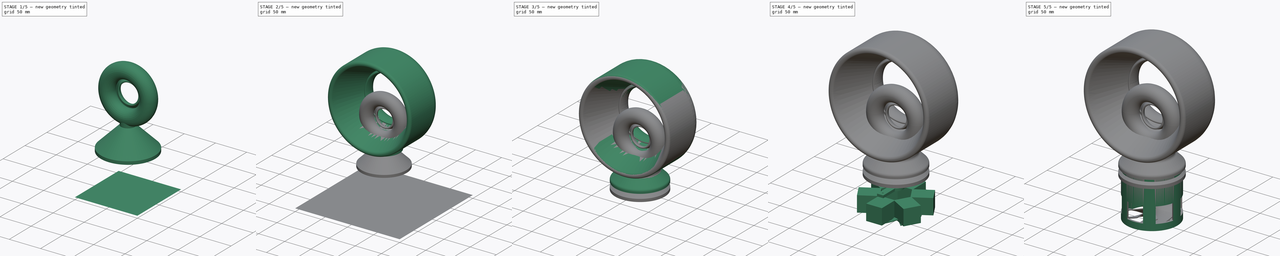
[diagram: build sequence overview — one tinted view per stage of 5, left to right]
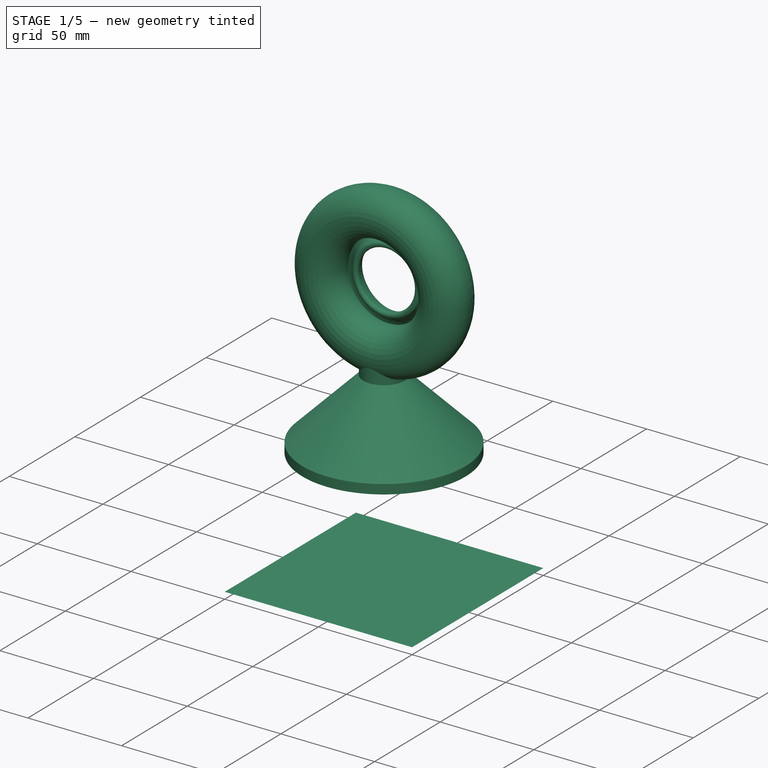
[diagram: stage 1 of 5 — iso view after this stage's code; geometry added in this stage tinted green]
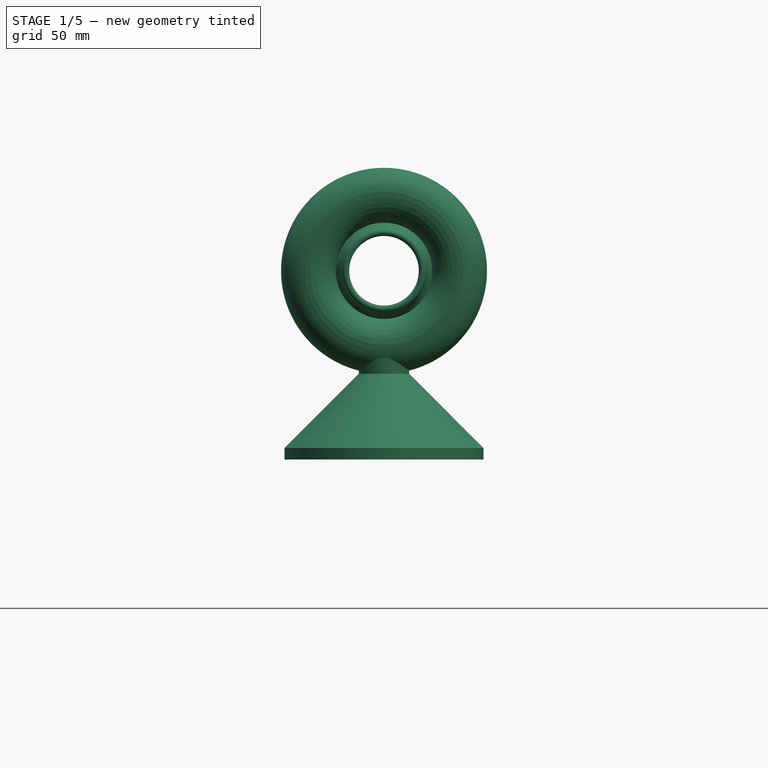
[diagram: stage 1 of 5 — front view after this stage's code; geometry added in this stage tinted green]
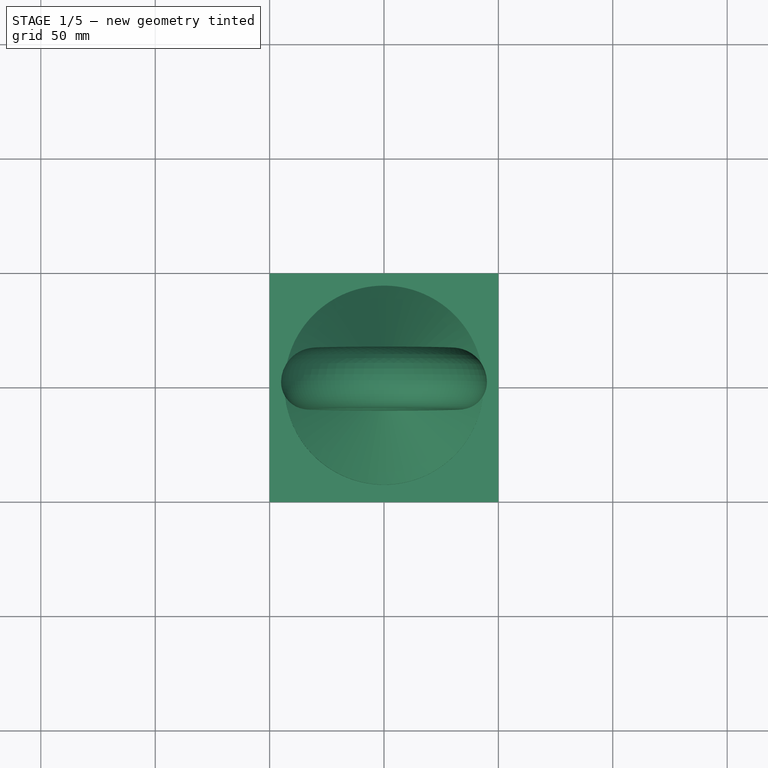
[diagram: stage 1 of 5 — top view after this stage's code; geometry added in this stage tinted green]
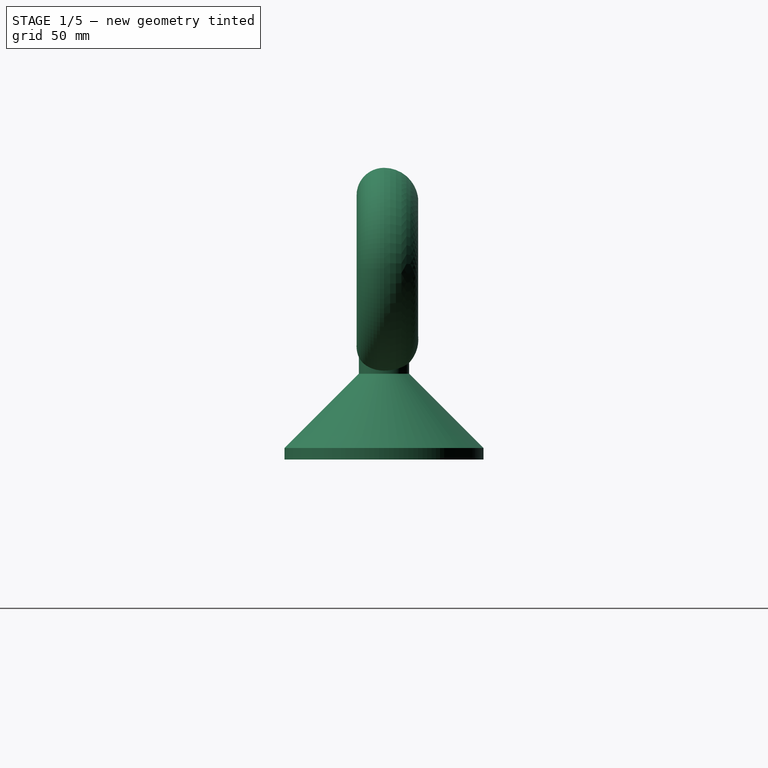
[diagram: stage 1 of 5 — right view after this stage's code; geometry added in this stage tinted green]
FCSTD DOCUMENT  (FreeCAD 0.19R24366 (Git))
Label: Airfan
License: All rights reserved
LicenseURL: http://en.wikipedia.org/wiki/All_rights_reserved
objects: Sketcher::SketchObject×17, PartDesign::Body×10, PartDesign::Pad×9, Part::FeaturePython×7, PartDesign::PolarPattern×4, PartDesign::Revolution×4, PartDesign::Pocket×3, PartDesign::Fillet×3, Part::MultiFuse×2, App::DocumentObjectGroup×2, PartDesign::AdditiveHelix×1, PartDesign::FeatureBase×1, Part::Cylinder×1, Part::Cut×1, PartDesign::Boolean×1
note: 84 computed .brp shape members not serialized (recipe doc carries the construction recipe); baked Part::Feature solids carry a one-line shape summary decoded from their .brp

FEATURE [App::DocumentObjectGroup] GrExplode_Slice  label="Exploded Slice"
  Group = -> [Slice_child0,Slice_child3]
FEATURE [Sketcher::SketchObject] Sketch015
  AttachmentOffset = pos=(-30,0,0) rot=(0,0,1;0rad)
  FullyConstrained = true
  MapMode = 5
  Placement = pos=(-6.7e-15,-30,6.7e-15) rot=(0.57735,0.57735,0.57735;2.0944rad)
  Support = -> [YZ_Plane007]
  sketch-geometry (8):
    g0: ArcOfCircle CenterX=0 CenterY=0 CenterZ=0 NormalX=0 NormalY=0 NormalZ=1 AngleXU=0 Radius=15 StartAngle=3.14159 EndAngle=6.10865
    g1: ArcOfCircle CenterX=0 CenterY=0 CenterZ=0 NormalX=0 NormalY=0 NormalZ=1 AngleXU=0 Radius=12 StartAngle=3.14159 EndAngle=6.10865
    g2: LineSegment StartX=0 StartY=0 StartZ=0 EndX=14.7721 EndY=-2.60472 EndZ=0
    g3: ArcOfCircle CenterX=-3 CenterY=0 CenterZ=0 NormalX=0 NormalY=0 NormalZ=1 AngleXU=0 Radius=12 StartAngle=6.01973 EndAngle=9.42478
    g4: ArcOfCircle CenterX=-3 CenterY=0 CenterZ=0 NormalX=0 NormalY=0 NormalZ=1 AngleXU=0 Radius=9 StartAngle=6.04837 EndAngle=9.42478
    g5: ArcOfCircle CenterX=7.16949 CenterY=-2.60948 CenterZ=0 NormalX=0 NormalY=0 NormalZ=1 AngleXU=0 Radius=1.50737 StartAngle=2.79253 EndAngle=5.93412
    g6: ArcOfCircle CenterX=13.2949 CenterY=-2.34425 CenterZ=0 NormalX=0 NormalY=0 NormalZ=1 AngleXU=0 Radius=1.5 StartAngle=6.10865 EndAngle=9.25025
    g7: LineSegment StartX=0 StartY=0 StartZ=0 EndX=8.58595 EndY=-3.12503 EndZ=0
  constraints (25):
    c: Coincident(g0,g-1)
    c: PointOnObject(g0,g-1)
    c: Coincident(g1,g0)
    c: PointOnObject(g1,g-1)
    c: Coincident(g2,g0)
    c: Coincident(g2,g0)
    c: PointOnObject(g1,g2)
    c: Radius(g0) = 15
    c: Radius(g1) = 12
    c: Angle(g-1,g2) = -0.174533
    c: PointOnObject(g3,g-1)
    c: Coincident(g3,g0)
    c: Radius(g3) = 12
    c: Coincident(g4,g3)
    c: Coincident(g4,g1)
    c: Coincident(g5,g3)
    c: Coincident(g5,g4)
    c: PointOnObject(g6,g2)
    c: Coincident(g6,g0)
    c: Coincident(g6,g1)
    c: Coincident(g7,g0)
    c: Coincident(g7,g3)
    c: PointOnObject(g4,g7)
    c: PointOnObject(g5,g7)
    c: Angle(g7,g2) = 0.174533
FEATURE [PartDesign::Revolution] Revolution003
  Angle = 360
  Axis = (-3e-16,3e-16,1)
  Base = (0,0,0)
  Placement = pos=(0,0,0) rot=(0.57735,0.57735,0.57735;2.0944rad)
  Profile = -> Sketch015
  ReferenceAxis = -> Z_Axis007
FEATURE [PartDesign::Body] Body007
  Group = -> [Sketch015,Revolution003]
  Origin = -> Origin007
  Tip = -> Revolution003
FEATURE [Sketcher::SketchObject] Sketch016
  FullyConstrained = true
  MapMode = 5
  Placement = pos=(0,0,0) rot=(1,0,0;1.5708rad)
  Support = -> [XZ_Plane008]
  sketch-geometry (2):
    g0: Circle CenterX=0 CenterY=0 CenterZ=0 NormalX=0 NormalY=0 NormalZ=1 AngleXU=0 Radius=11
    g1: Circle CenterX=0 CenterY=0 CenterZ=0 NormalX=0 NormalY=0 NormalZ=1 AngleXU=0 Radius=8
  constraints (5):
    c: Coincident(g0,g-1)
    c: PointOnObject(g1,g-2)
    c: Radius(g0) = 11
    c: Radius(g1) = 8
    c: PointOnObject(g1,g-1)
FEATURE [PartDesign::Pad] Pad007
  Direction = (1,1,1)
  Length = 7
  Length2 = 100
  Placement = pos=(0,0,0) rot=(1,0,0;1.5708rad)
  Profile = -> Sketch016
  Type = 0
FEATURE [Part::Cylinder] Cylinder
  Angle = 360
  AttacherType = Attacher::AttachEngine3D
  Height = 8
  Placement = pos=(0,-37,8.7e-15) rot=(1,0,0;1.5708rad)
  Radius = 8
FEATURE [Sketcher::SketchObject] Sketch017
  ExternalGeometry = -> [Pad007]
  FullyConstrained = true
  MapMode = 5
  Support = -> [XY_Plane008]
  sketch-geometry (6):
    g0: LineSegment StartX=-8 StartY=-7 StartZ=0 EndX=-11 EndY=-7 EndZ=0
    g1: LineSegment StartX=-11 StartY=-7 StartZ=0 EndX=-43.5 EndY=-39.5 EndZ=0
    g2: LineSegment StartX=-43.5 StartY=-39.5 StartZ=0 EndX=-43.5 EndY=-44.5 EndZ=0
    g3: LineSegment StartX=-43.5 StartY=-44.5 StartZ=0 EndX=-40.5 EndY=-44.5 EndZ=0
    g4: LineSegment StartX=-40.5 StartY=-44.5 StartZ=0 EndX=-40.5 EndY=-39.5 EndZ=0
    g5: LineSegment StartX=-40.5 StartY=-39.5 StartZ=0 EndX=-8 EndY=-7 EndZ=0
  constraints (16):
    c: Coincident(g0,g-4)
    c: Coincident(g0,g-3)
    c: Coincident(g1,g0)
    c: Coincident(g2,g1)
    c: Vertical(g4)
    c: Coincident(g5,g0)
    c: Vertical(g2)
    c: Coincident(g3,g2)
    c: Coincident(g4,g3)
    c: Coincident(g4,g5)
    c: DistanceX(g3,g3) = 3
    c: DistanceY(g4,g4) = 5
    c: DistanceY(g2,g2) = 5
    c: Horizontal(g3)
    c: Distance(g3,g-2) = 40.5
    c: Angle(g4,g5) = 2.35619
FEATURE [PartDesign::Revolution] Revolution004
  Angle = 360
  Axis = (0,1,0)
  Base = (0,0,0)
  BaseFeature = -> Pad007
  Placement = pos=(0,0,0) rot=(1,0,0;1.5708rad)
  Profile = -> Sketch017
  ReferenceAxis = -> Sketch017 [V_Axis]
FEATURE [PartDesign::Body] Body008
  Group = -> [Sketch016,Pad007,Sketch017,Revolution004]
  Origin = -> Origin008
  Placement = pos=(0,-38,0) rot=(0,0,1;0rad)
  Tip = -> Revolution004
FEATURE [Part::MultiFuse] Fusion001
  Shapes = -> [Body007,Body008]
FEATURE [Part::Cut] Cut  label="FanRing001"
  Base = -> Fusion001
  Placement = pos=(0,0,144) rot=(1,0,0;1.5708rad)
  Tool = -> Cylinder
FEATURE [PartDesign::Body] Body  label="Airshaft"
  Group = -> [Sketch,Pad,Sketch001,Pad001,PolarPattern,Sketch002,Pad002,PolarPattern001,Fillet,Boolean]
  Origin = -> Origin
  Tip = -> Boolean
FEATURE [Sketcher::SketchObject] Sketch018
  FullyConstrained = true
  MapMode = 5
  Support = -> [XY_Plane009]
  sketch-geometry (4):
    g0: LineSegment StartX=-50 StartY=50 StartZ=0 EndX=50 EndY=50 EndZ=0
    g1: LineSegment StartX=50 StartY=50 StartZ=0 EndX=50 EndY=-50 EndZ=0
    g2: LineSegment StartX=50 StartY=-50 StartZ=0 EndX=-50 EndY=-50 EndZ=0
    g3: LineSegment StartX=-50 StartY=-50 StartZ=0 EndX=-50 EndY=50 EndZ=0
  constraints (11):
    c: Coincident(g0,g1)
    c: Coincident(g1,g2)
    c: Coincident(g2,g3)
    c: Coincident(g3,g0)
    c: Horizontal(g0)
    c: Horizontal(g2)
    c: Vertical(g1)
    c: Vertical(g3)
    c: DistanceY(g1,g1) = 100
    c: DistanceX(g0,g0) = 100
    c: Symmetric(g2,g0,g-1)
FEATURE [PartDesign::Pad] Pad008
  Direction = (1,1,1)
  Length = 1e-06
  Length2 = 100
  Profile = -> Sketch018
  Type = 0
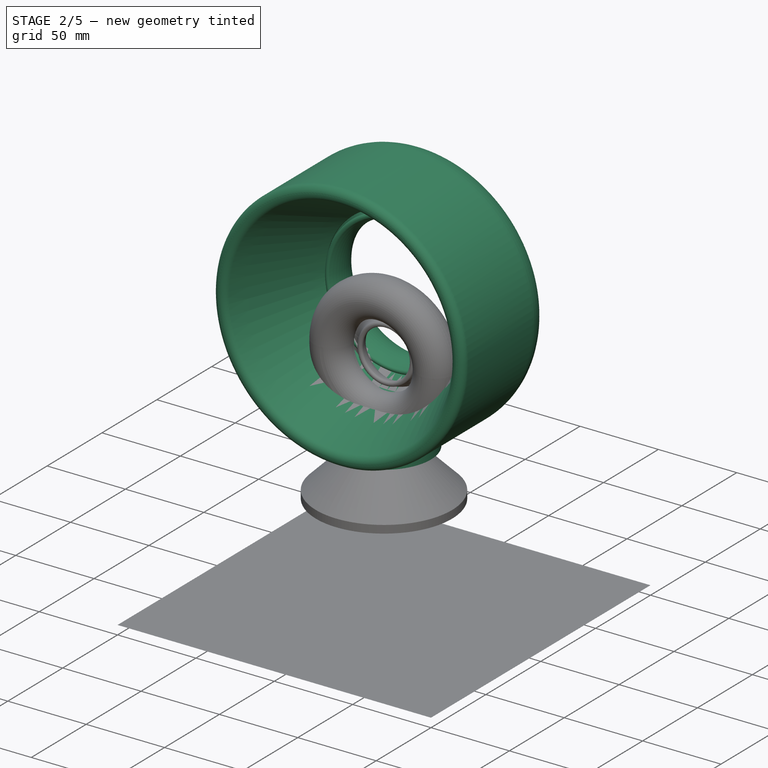
[diagram: stage 2 of 5 — iso view after this stage's code; geometry added in this stage tinted green]
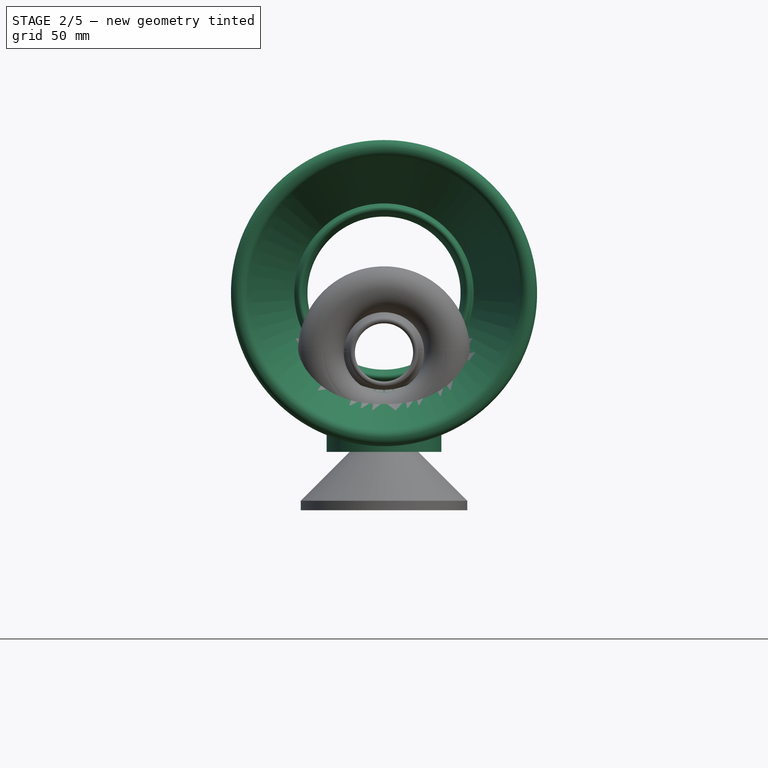
[diagram: stage 2 of 5 — front view after this stage's code; geometry added in this stage tinted green]
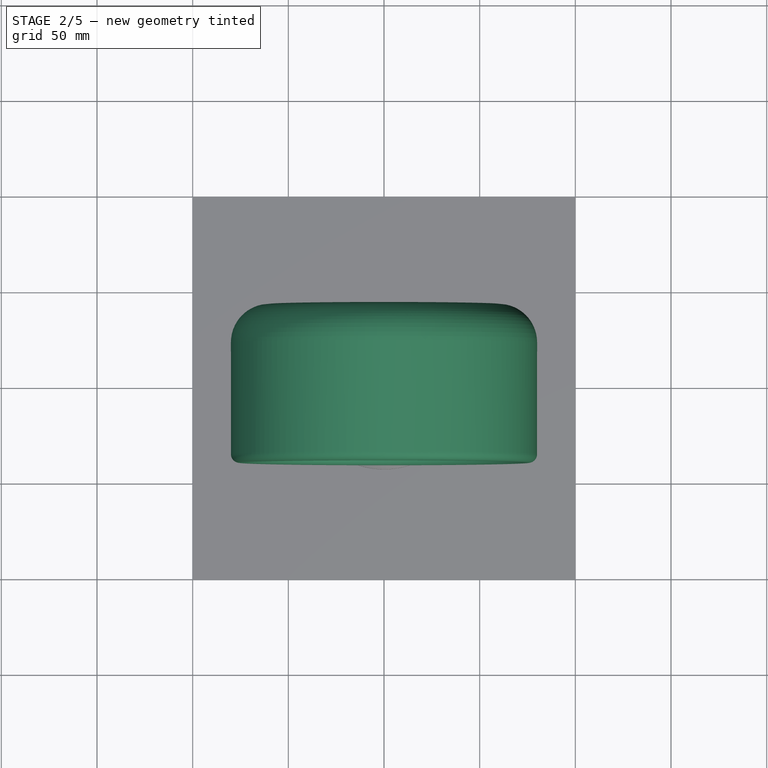
[diagram: stage 2 of 5 — top view after this stage's code; geometry added in this stage tinted green]
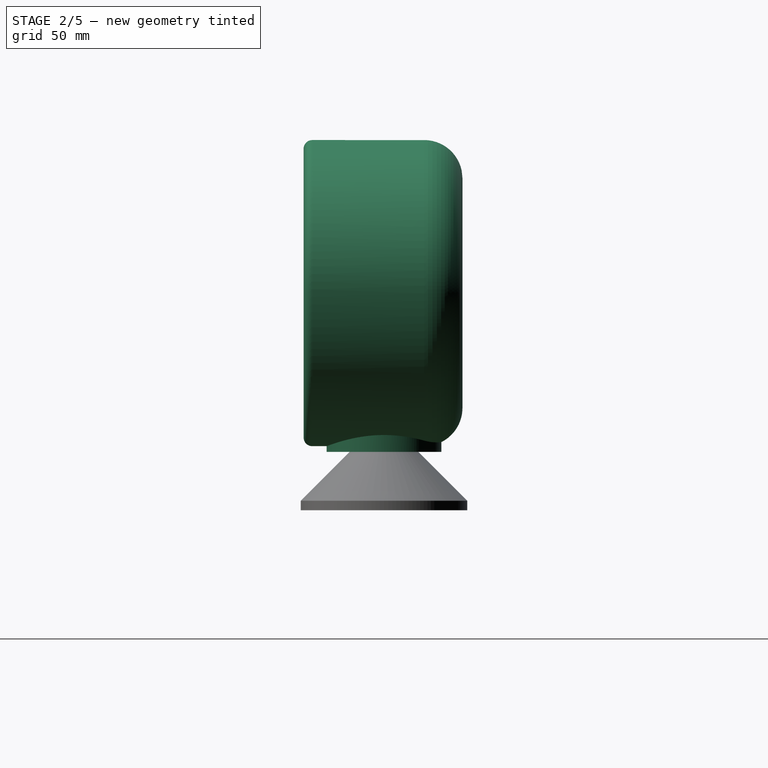
[diagram: stage 2 of 5 — right view after this stage's code; geometry added in this stage tinted green]
FEATURE [PartDesign::Body] Body003  label="Impeller"
  Group = -> [Sketch005,Pad005,Sketch007,AdditiveHelix,PolarPattern003,Sketch008,Pocket001]
  Origin = -> Origin003
  Placement = pos=(0,0,48) rot=(0,0,1;0rad)
  Tip = -> Pocket001
FEATURE [Sketcher::SketchObject] Sketch009
  AttachmentOffset = pos=(-60,0,0) rot=(0,0,1;0rad)
  FullyConstrained = true
  MapMode = 5
  Placement = pos=(-1.33e-14,-60,1.33e-14) rot=(0.57735,0.57735,0.57735;2.0944rad)
  Support = -> [YZ_Plane004]
  sketch-geometry (12):
    g0: ArcOfCircle CenterX=0 CenterY=0 CenterZ=0 NormalX=0 NormalY=0 NormalZ=1 AngleXU=0 Radius=20 StartAngle=3.14159 EndAngle=6.80678
    g1: ArcOfCircle CenterX=0 CenterY=0 CenterZ=0 NormalX=0 NormalY=0 NormalZ=1 AngleXU=0 Radius=17 StartAngle=3.14159 EndAngle=6.80678
    g2: LineSegment StartX=0 StartY=0 StartZ=0 EndX=17.3205 EndY=10 EndZ=0
    g3: ArcOfCircle CenterX=16.0215 CenterY=9.25 CenterZ=0 NormalX=0 NormalY=0 NormalZ=1 AngleXU=0 Radius=1.5 StartAngle=0.523599 EndAngle=3.66519
    g4: LineSegment StartX=-20 StartY=2.4e-15 StartZ=0 EndX=-20 EndY=58.5 EndZ=0
    g5: LineSegment StartX=-17 StartY=2.1e-15 StartZ=0 EndX=-17 EndY=60.7768 EndZ=0
    g6: LineSegment StartX=-11.4141 StartY=60.3855 StartZ=0 EndX=12.9904 EndY=7.5 EndZ=0
    g7: LineSegment StartX=10.2664 StartY=6.243 StartZ=0 EndX=-15.092 EndY=61.1958 EndZ=0
    g8: ArcOfCircle CenterX=11.6284 CenterY=6.87149 CenterZ=0 NormalX=0 NormalY=0 NormalZ=1 AngleXU=0 Radius=1.5 StartAngle=3.57393 EndAngle=6.71554
    g9: LineSegment StartX=12.9904 StartY=7.5 StartZ=0 EndX=10.2664 EndY=6.243 EndZ=0
    g10: ArcOfCircle CenterX=-16 CenterY=60.7768 CenterZ=0 NormalX=0 NormalY=0 NormalZ=1 AngleXU=0 Radius=1 StartAngle=0.432342 EndAngle=3.14159
    g11: ArcOfCircle CenterX=-15.5 CenterY=58.5 CenterZ=0 NormalX=0 NormalY=0 NormalZ=1 AngleXU=0 Radius=4.5 StartAngle=0.432342 EndAngle=3.14159
  constraints (34):
    c: Coincident(g0,g-1)
    c: PointOnObject(g0,g-1)
    c: Coincident(g1,g0)
    c: PointOnObject(g1,g-1)
    c: Radius(g1) = 17
    c: Radius(g0) = 20
    c: Coincident(g2,g0)
    c: Coincident(g2,g0)
    c: Angle(g-1,g2) = 0.523599
    c: PointOnObject(g1,g2)
    c: PointOnObject(g3,g2)
    c: Coincident(g3,g0)
    c: Coincident(g3,g1)
    c: Coincident(g4,g0)
    c: Vertical(g4)
    c: Coincident(g5,g1)
    c: Vertical(g5)
    c: PointOnObject(g6,g2)
    c: Coincident(g8,g6)
    c: Coincident(g8,g7)
    c: Tangent(g7,g8)
    c: Tangent(g6,g8)
    c: Parallel(g7,g6)
    c: Coincident(g9,g6)
    c: Coincident(g9,g7)
    c: Distance(g9) = 3
    c: Distance(g6,g1) = 2
    c: Tangent(g5,g10) = 1.5708
    c: Tangent(g7,g10) = -1.5708
    c: Tangent(g4,g11) = 1.5708
    c: Tangent(g6,g11) = 1.5708
    c: Radius(g11) = 4.5
    c: Radius(g10) = 1
    c: DistanceY(g0,g4) = 58.5
FEATURE [PartDesign::Revolution] Revolution
  Angle = 360
  Axis = (-3e-16,3e-16,1)
  Base = (0,0,0)
  Placement = pos=(0,0,0) rot=(0.57735,0.57735,0.57735;2.0944rad)
  Profile = -> Sketch009
  ReferenceAxis = -> Z_Axis004
FEATURE [PartDesign::Body] Body004  label="FanRing"
  Group = -> [Sketch009,Revolution]
  Origin = -> Origin004
  Placement = pos=(0,21,175) rot=(1,0,0;1.5708rad)
  Tip = -> Revolution
FEATURE [Part::FeaturePython] Tube  # WARN: FeaturePython — macro-defined, semantics opaque (R4)
  AttacherType = Attacher::AttachEngine3D
  Height = 10
  InnerRadius = 27
  OuterRadius = 30
  Placement = pos=(0,0,92) rot=(0,0,1;0rad)
FEATURE [Part::MultiFuse] Fusion
  Shapes = -> [Body004,Tube]
FEATURE [PartDesign::FeatureBase] BaseFeature
  BaseFeature = -> Fusion
FEATURE [PartDesign::Body] Body005  label="FanHead"
  BaseFeature = -> Fusion
  Group = -> [BaseFeature,Sketch010,Pocket002,Sketch013,Revolution002,Fillet001,Fillet002]
  Origin = -> Origin005
  Placement = pos=(0,0,1) rot=(0,0,1;0rad)
  Tip = -> Fillet002
FEATURE [Sketcher::SketchObject] Sketch014
  FullyConstrained = true
  MapMode = 5
  Support = -> [XY_Plane006]
  sketch-geometry (4):
    g0: LineSegment StartX=-100 StartY=100 StartZ=0 EndX=100 EndY=100 EndZ=0
    g1: LineSegment StartX=100 StartY=100 StartZ=0 EndX=100 EndY=-100 EndZ=0
    g2: LineSegment StartX=100 StartY=-100 StartZ=0 EndX=-100 EndY=-100 EndZ=0
    g3: LineSegment StartX=-100 StartY=-100 StartZ=0 EndX=-100 EndY=100 EndZ=0
  constraints (11):
    c: Coincident(g0,g1)
    c: Coincident(g1,g2)
    c: Coincident(g2,g3)
    c: Coincident(g3,g0)
    c: Horizontal(g0)
    c: Horizontal(g2)
    c: Vertical(g1)
    c: Vertical(g3)
    c: DistanceX(g2,g2) = 200
    c: DistanceY(g1,g1) = 200
    c: Symmetric(g0,g1,g-1)
FEATURE [PartDesign::Pad] Pad006
  Direction = (1,1,1)
  Length = 0.0001
  Length2 = 100
  Profile = -> Sketch014
  Type = 0
FEATURE [PartDesign::Body] Body009
  Group = -> [Sketch018,Pad008]
  Origin = -> Origin009
  Placement = pos=(0,0,145) rot=(0,0,1;0rad)
  Tip = -> Pad008
FEATURE [Part::FeaturePython] Slice001  # WARN: FeaturePython — macro-defined, semantics opaque (R4)
  Base = -> Cut
  Mode = 1
  Tolerance = 0
  Tools = -> [Body009]
FEATURE [Part::FeaturePython] Slice001_child0  label="Slice001.0"  # WARN: FeaturePython — macro-defined, semantics opaque (R4)
  Base = -> Slice001
  FilterType = 1
  Invert = false
  OverrideMaxVal = 0
  WindowFrom = 80
  WindowTo = 100
  items = 0
FEATURE [Part::FeaturePython] Slice001_child1  label="Slice001.1"  # WARN: FeaturePython — macro-defined, semantics opaque (R4)
  Base = -> Slice001
  FilterType = 1
  Invert = false
  OverrideMaxVal = 0
  WindowFrom = 80
  WindowTo = 100
  items = 1
FEATURE [App::DocumentObjectGroup] GrExplode_Slice001  label="Exploded Slice001"
  Group = -> [Slice001_child0,Slice001_child1]
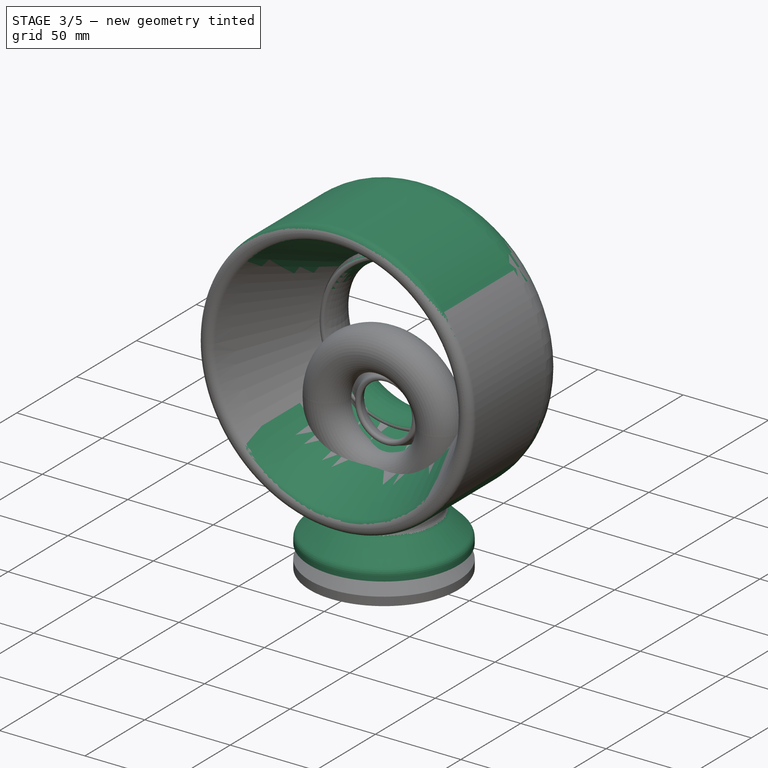
[diagram: stage 3 of 5 — iso view after this stage's code; geometry added in this stage tinted green]
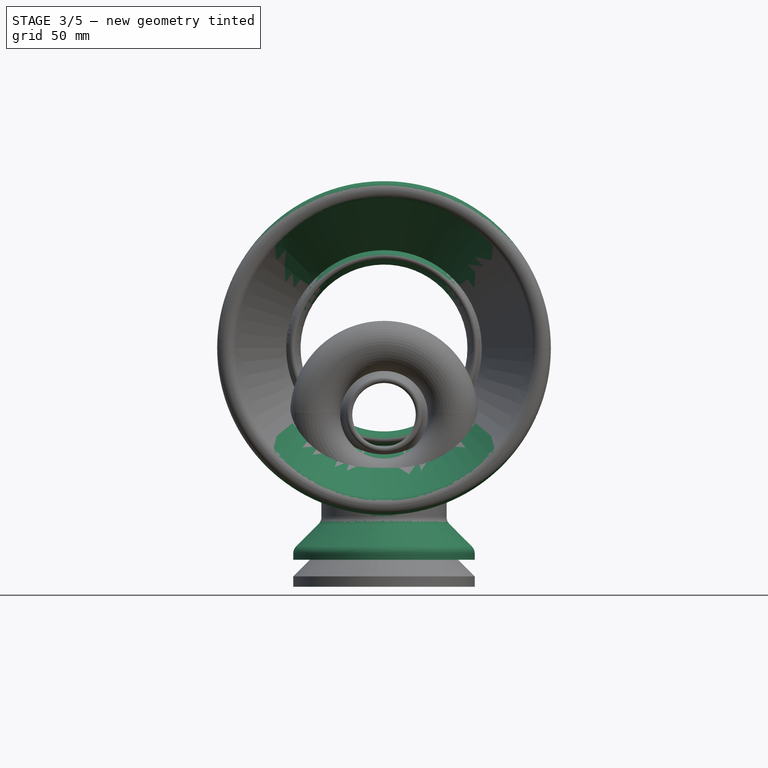
[diagram: stage 3 of 5 — front view after this stage's code; geometry added in this stage tinted green]
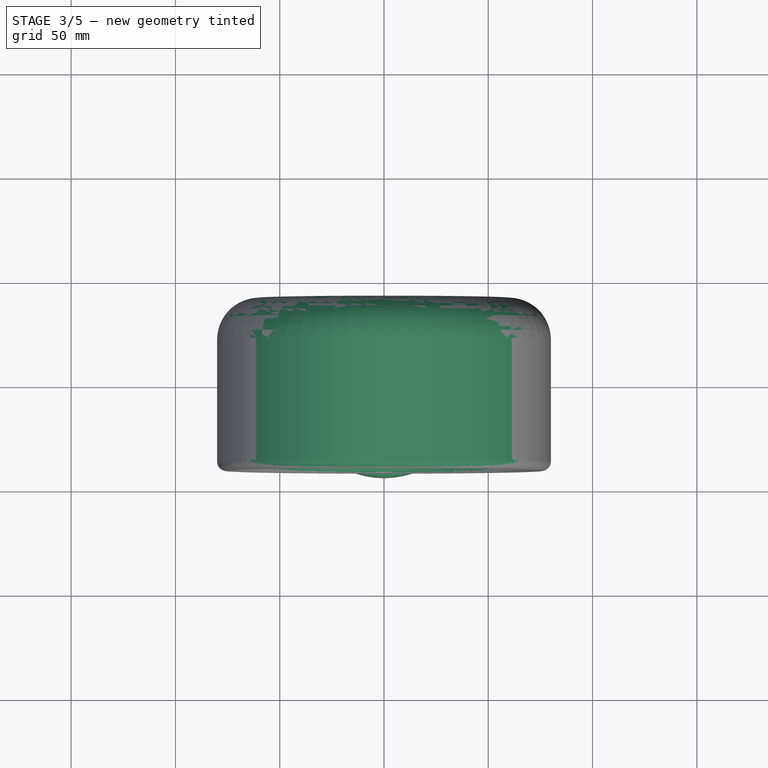
[diagram: stage 3 of 5 — top view after this stage's code; geometry added in this stage tinted green]
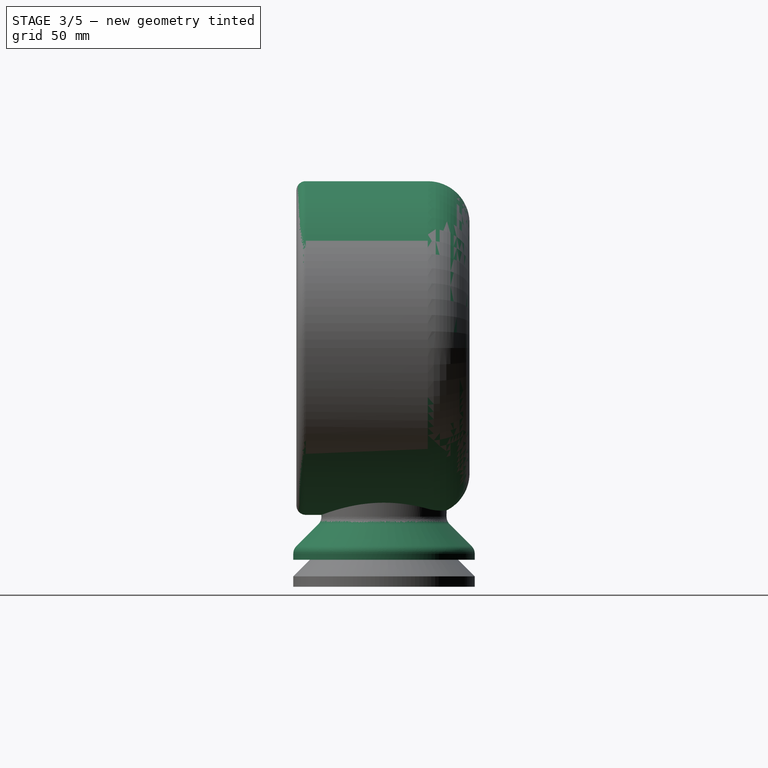
[diagram: stage 3 of 5 — right view after this stage's code; geometry added in this stage tinted green]
FEATURE [Sketcher::SketchObject] Sketch010
  FullyConstrained = true
  MapMode = 5
  Placement = pos=(0,0,92) rot=(1,0,0;3.14159rad)
  Support = -> [BaseFeature]
  sketch-geometry (1):
    g0: Circle CenterX=0 CenterY=0 CenterZ=0 NormalX=0 NormalY=0 NormalZ=1 AngleXU=0 Radius=27
  constraints (2):
    c: Coincident(g0,g-1)
    c: Radius(g0) = 27
FEATURE [PartDesign::Pocket] Pocket002
  BaseFeature = -> BaseFeature
  Length = 11
  Length2 = 100
  Profile = -> Sketch010
  Type = 0
FEATURE [Sketcher::SketchObject] Sketch013
  ExternalGeometry = -> [Pocket002]
  FullyConstrained = true
  MapMode = 5
  Placement = pos=(0,0,0) rot=(1,0,0;1.5708rad)
  Support = -> [XZ_Plane005]
  sketch-geometry (6):
    g0: LineSegment StartX=-30 StartY=92 StartZ=0 EndX=-43.5 EndY=78.5 EndZ=0
    g1: LineSegment StartX=-27 StartY=92 StartZ=0 EndX=-40.5 EndY=78.5 EndZ=0
    g2: LineSegment StartX=-40.5 StartY=78.5 StartZ=0 EndX=-40.5 EndY=73.5 EndZ=0
    g3: LineSegment StartX=-40.5 StartY=73.5 StartZ=0 EndX=-43.5 EndY=73.5 EndZ=0
    g4: LineSegment StartX=-43.5 StartY=73.5 StartZ=0 EndX=-43.5 EndY=78.5 EndZ=0
    g5: LineSegment StartX=-30 StartY=92 StartZ=0 EndX=-27 EndY=92 EndZ=0
  constraints (17):
    c: Coincident(g0,g-3)
    c: Coincident(g1,g-4)
    c: Coincident(g2,g1)
    c: Vertical(g2)
    c: Horizontal(g3)
    c: Coincident(g4,g3)
    c: Coincident(g4,g0)
    c: Vertical(g4)
    c: DistanceX(g3,g3) = 3
    c: DistanceY(g2,g2) = 5
    c: DistanceY(g4,g4) = 5
    c: Coincident(g3,g2)
    c: Coincident(g5,g0)
    c: Coincident(g5,g1)
    c: DistanceY(g2,g0) = 18.5
    c: Distance(g2,g-2) = 40.5
    c: Angle(g5,g1) = 0.785398
FEATURE [PartDesign::Revolution] Revolution002
  Angle = 360
  Axis = (0,2e-16,1)
  Base = (0,0,0)
  BaseFeature = -> Pocket002
  Profile = -> Sketch013
  ReferenceAxis = -> Sketch013 [V_Axis]
FEATURE [PartDesign::Fillet] Fillet001
  Base = -> Revolution002 [Edge45,Edge53,Edge52]
  BaseFeature = -> Revolution002
  Radius = 5
  SupportTransform = false
FEATURE [PartDesign::Fillet] Fillet002
  Base = -> Fillet001 [Edge18,Edge17]
  BaseFeature = -> Fillet001
  Radius = 4
  SupportTransform = false
FEATURE [PartDesign::Body] Body006
  Group = -> [Sketch014,Pad006]
  Origin = -> Origin006
  Placement = pos=(0,0,176) rot=(0,0,1;0rad)
  Tip = -> Pad006
FEATURE [Part::FeaturePython] Slice  # WARN: FeaturePython — macro-defined, semantics opaque (R4)
  Base = -> Body005
  Mode = 1
  Tolerance = 0
  Tools = -> [Body006]
FEATURE [Part::FeaturePython] Slice_child0  label="FanHeadBottom"  # WARN: FeaturePython — macro-defined, semantics opaque (R4)
  Base = -> Slice
  FilterType = 1
  Invert = false
  OverrideMaxVal = 0
  WindowFrom = 80
  WindowTo = 100
  items = 0
FEATURE [Part::FeaturePython] Slice_child3  label="FanHeapTop"  # WARN: FeaturePython — macro-defined, semantics opaque (R4)
  Base = -> Slice
  FilterType = 1
  Invert = false
  OverrideMaxVal = 0
  WindowFrom = 80
  WindowTo = 100
  items = 3
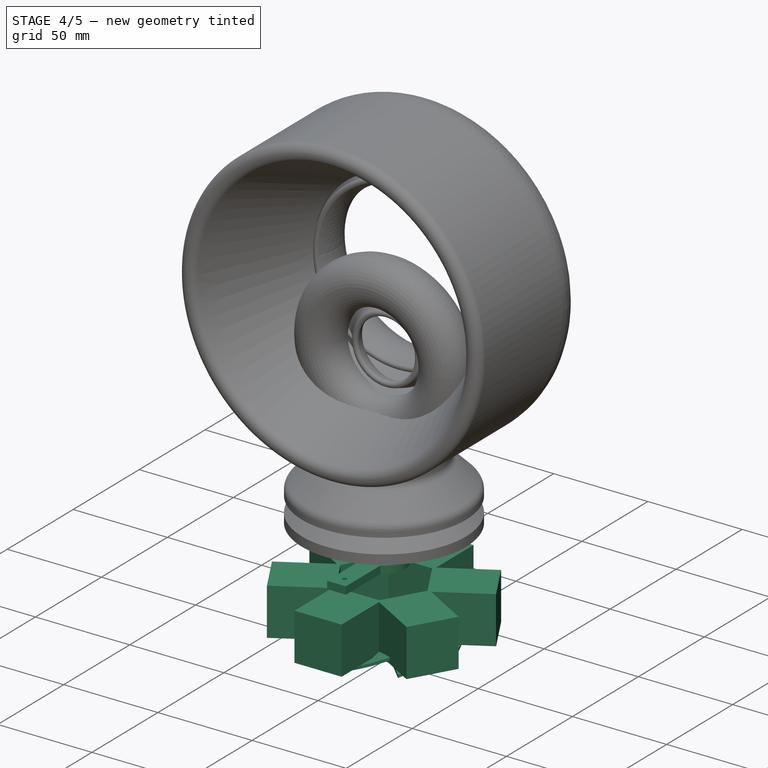
[diagram: stage 4 of 5 — iso view after this stage's code; geometry added in this stage tinted green]
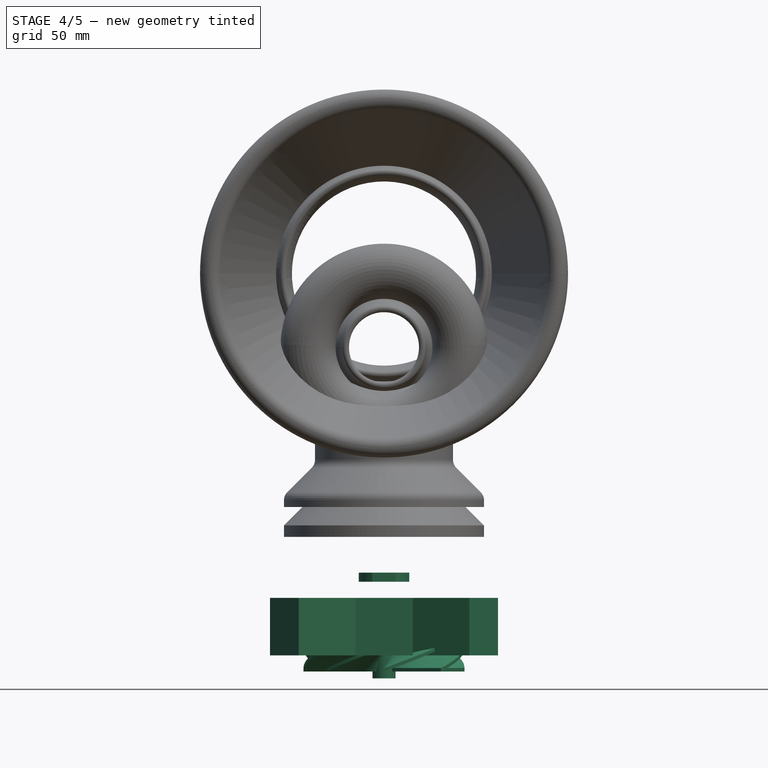
[diagram: stage 4 of 5 — front view after this stage's code; geometry added in this stage tinted green]
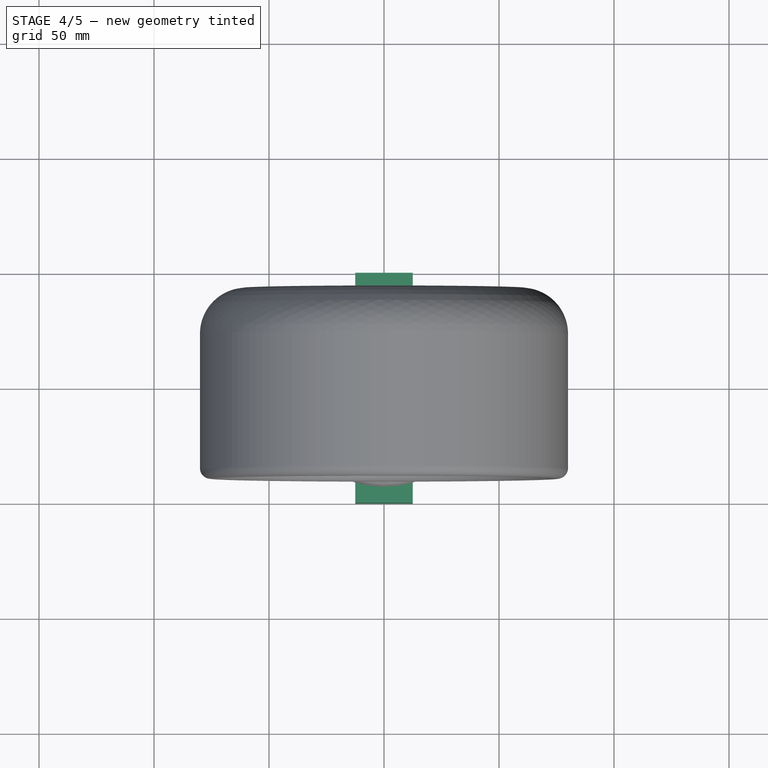
[diagram: stage 4 of 5 — top view after this stage's code; geometry added in this stage tinted green]
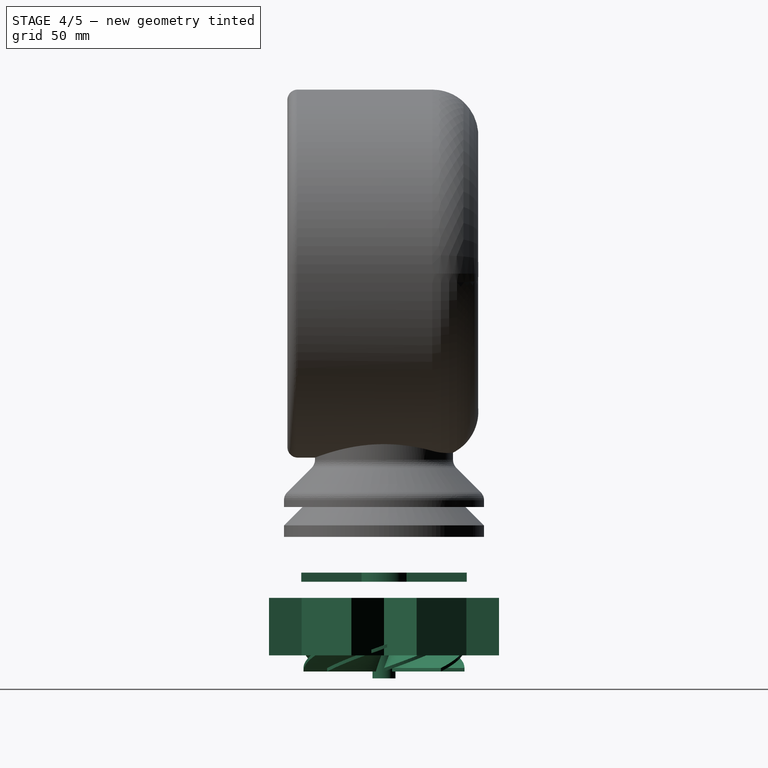
[diagram: stage 4 of 5 — right view after this stage's code; geometry added in this stage tinted green]
FEATURE [Sketcher::SketchObject] Sketch003
  AttachmentOffset = pos=(0,0,10) rot=(0,0,1;0rad)
  FullyConstrained = true
  MapMode = 5
  Placement = pos=(0,0,10) rot=(0,0,1;0rad)
  Support = -> [XY_Plane001]
  sketch-geometry (4):
    g0: LineSegment StartX=-12.5 StartY=50 StartZ=0 EndX=12.5 EndY=50 EndZ=0
    g1: LineSegment StartX=12.5 StartY=50 StartZ=0 EndX=12.5 EndY=20 EndZ=0
    g2: LineSegment StartX=12.5 StartY=20 StartZ=0 EndX=-12.5 EndY=20 EndZ=0
    g3: LineSegment StartX=-12.5 StartY=20 StartZ=0 EndX=-12.5 EndY=50 EndZ=0
  constraints (11):
    c: Coincident(g0,g1)
    c: Coincident(g1,g2)
    c: Coincident(g2,g3)
    c: Coincident(g3,g0)
    c: Horizontal(g2)
    c: Vertical(g1)
    c: Vertical(g3)
    c: DistanceX(g0,g0) = 25
    c: DistanceY(g3,g3) = 30
    c: Symmetric(g0,g0,g-2)
    c: Distance(g-1,g2) = 20
FEATURE [PartDesign::Pad] Pad003
  Direction = (1,1,1)
  Length = 25
  Length2 = 100
  Profile = -> Sketch003
  Type = 0
FEATURE [PartDesign::PolarPattern] PolarPattern002
  Angle = 360
  Axis = -> Sketch003 [N_Axis]
  BaseFeature = -> Pad003
  Occurrences = 6
  Originals = -> [Pad003]
FEATURE [PartDesign::Body] Body001
  Group = -> [Sketch003,Pad003,PolarPattern002]
  Origin = -> Origin001
  Tip = -> PolarPattern002
FEATURE [Sketcher::SketchObject] Sketch004
  AttachmentOffset = pos=(0,0,42) rot=(0,0,1;0rad)
  FullyConstrained = true
  MapMode = 5
  Placement = pos=(0,0,42) rot=(0,0,1;0rad)
  Support = -> [XY_Plane002]
  sketch-geometry (13):
    g0: ArcOfCircle CenterX=0 CenterY=0 CenterZ=0 NormalX=0 NormalY=0 NormalZ=1 AngleXU=0 Radius=11 StartAngle=2.04266 EndAngle=4.24053
    g1: Circle CenterX=0 CenterY=0 CenterZ=0 NormalX=0 NormalY=0 NormalZ=1 AngleXU=0 Radius=5
    g2: Circle CenterX=0 CenterY=8.5 CenterZ=0 NormalX=0 NormalY=0 NormalZ=1 AngleXU=0 Radius=1
    g3: Circle CenterX=0 CenterY=-8.5 CenterZ=0 NormalX=0 NormalY=0 NormalZ=1 AngleXU=0 Radius=1
    g4: LineSegment StartX=-5 StartY=9.79796 StartZ=0 EndX=-5 EndY=36 EndZ=0
    g5: LineSegment StartX=-5 StartY=36 StartZ=0 EndX=5 EndY=36 EndZ=0
    g6: LineSegment StartX=5 StartY=36 StartZ=0 EndX=5 EndY=9.79796 EndZ=0
    g7: Circle CenterX=0 CenterY=30 CenterZ=0 NormalX=0 NormalY=0 NormalZ=1 AngleXU=0 Radius=1.1
    g8: LineSegment StartX=-5 StartY=-9.79796 StartZ=0 EndX=-5 EndY=-36 EndZ=0
    g9: LineSegment StartX=-5 StartY=-36 StartZ=0 EndX=5 EndY=-36 EndZ=0
    g10: LineSegment StartX=5 StartY=-36 StartZ=0 EndX=5 EndY=-9.79796 EndZ=0
    g11: Circle CenterX=0 CenterY=-30 CenterZ=0 NormalX=0 NormalY=0 NormalZ=1 AngleXU=0 Radius=1.1
    g12: ArcOfCircle CenterX=0 CenterY=0 CenterZ=0 NormalX=0 NormalY=0 NormalZ=1 AngleXU=0 Radius=11 StartAngle=5.18425 EndAngle=7.38212
  constraints (35):
    c: Coincident(g0,g-1)
    c: Coincident(g1,g0)
    c: Radius(g1) = 5
    c: Radius(g0) = 11
    c: PointOnObject(g2,g-2)
    c: Radius(g3) = 1
    c: Radius(g2) = 1
    c: Distance(g2,g3) = 17
    c: Symmetric(g2,g3,g-1)
    c: Vertical(g4)
    c: Coincident(g6,g5)
    c: Vertical(g6)
    c: DistanceX(g5,g5) = 10
    c: Coincident(g4,g5)
    c: Symmetric(g4,g5,g-2)
    c: Distance(g0,g5) = 36
    c: PointOnObject(g7,g-2)
    c: Radius(g7) = 1.1
    c: Distance(g0,g7) = 30
    c: Coincident(g0,g4)
    c: Coincident(g12,g6)
    c: Vertical(g8)
    c: Coincident(g9,g8)
    c: Coincident(g10,g9)
    c: Vertical(g10)
    c: Symmetric(g8,g9,g-2)
    c: DistanceX(g9,g9) = 10
    c: Distance(g0,g9) = 36
    c: PointOnObject(g11,g-2)
    c: Radius(g11) = 1.1
    c: Distance(g11,g0) = 30
    c: Equal(g0,g12)
    c: Coincident(g0,g8)
    c: Coincident(g12,g10)
    c: Coincident(g0,g12)
FEATURE [PartDesign::Pad] Pad004
  Direction = (1,1,1)
  Length = 4
  Length2 = 100
  Profile = -> Sketch004
  Type = 0
FEATURE [Sketcher::SketchObject] Sketch005
  FullyConstrained = true
  MapMode = 5
  Support = -> [XY_Plane003]
  sketch-geometry (1):
    g0: Circle CenterX=0 CenterY=0 CenterZ=0 NormalX=0 NormalY=0 NormalZ=1 AngleXU=0 Radius=5
  constraints (2):
    c: Coincident(g0,g-1)
    c: Radius(g0) = 5
FEATURE [Sketcher::SketchObject] Sketch006
  ExternalGeometry = -> [Pad004]
  FullyConstrained = true
  MapMode = 5
  Placement = pos=(0,0,46) rot=(0,0,1;0rad)
  Support = -> [Pad004]
  sketch-geometry (2):
    g0: Circle CenterX=0 CenterY=8.5 CenterZ=0 NormalX=0 NormalY=0 NormalZ=1 AngleXU=0 Radius=2
    g1: Circle CenterX=0 CenterY=-8.5 CenterZ=0 NormalX=0 NormalY=0 NormalZ=1 AngleXU=0 Radius=2
  constraints (4):
    c: Coincident(g0,g-3)
    c: Coincident(g1,g-4)
    c: Radius(g0) = 2
    c: Radius(g1) = 2
FEATURE [PartDesign::Pocket] Pocket
  BaseFeature = -> Pad004
  Length = 2
  Length2 = 100
  Profile = -> Sketch006
  Type = 0
FEATURE [PartDesign::Body] Body002  label="Motorholder"
  Group = -> [Sketch004,Pad004,Sketch006,Pocket]
  Origin = -> Origin002
  Tip = -> Pocket
FEATURE [PartDesign::Pad] Pad005
  Direction = (1,1,1)
  Length = 15
  Length2 = 100
  Profile = -> Sketch005
  Type = 0
FEATURE [Sketcher::SketchObject] Sketch007
  AttachmentOffset = pos=(0,3,0) rot=(0,0,1;0rad)
  ExternalGeometry = -> [Pad005]
  FullyConstrained = true
  MapMode = 5
  Placement = pos=(-7e-16,7e-16,3) rot=(0.57735,0.57735,0.57735;2.0944rad)
  Support = -> [YZ_Plane003]
  sketch-geometry (4):
    g0: LineSegment StartX=0 StartY=0 StartZ=0 EndX=35 EndY=0 EndZ=0
    g1: LineSegment StartX=35 StartY=0 StartZ=0 EndX=35 EndY=1.5 EndZ=0
    g2: LineSegment StartX=35 StartY=1.5 StartZ=0 EndX=0 EndY=1.5 EndZ=0
    g3: LineSegment StartX=0 StartY=1.5 StartZ=0 EndX=0 EndY=0 EndZ=0
  constraints (11):
    c: Coincident(g0,g1)
    c: Coincident(g1,g2)
    c: Coincident(g2,g3)
    c: Coincident(g3,g0)
    c: Horizontal(g0)
    c: Horizontal(g2)
    c: Vertical(g1)
    c: Vertical(g3)
    c: Coincident(g0,g-1)
    c: DistanceX(g2,g2) = 35
    c: DistanceY(g1,g1) = 1.5
FEATURE [PartDesign::AdditiveHelix] AdditiveHelix
  Angle = 0
  Axis = (-2e-16,3e-16,1)
  Base = (-7e-16,7e-16,3)
  BaseFeature = -> Pad005
  HasBeenEdited = true
  Height = 10.5
  LeftHanded = false
  Mode = 0
  Outside = false
  Pitch = 80
  Profile = -> Sketch007
  ReferenceAxis = -> Sketch007 [V_Axis]
  Turns = 0.13125
FEATURE [PartDesign::PolarPattern] PolarPattern003
  Angle = 360
  Axis = -> Z_Axis003
  BaseFeature = -> AdditiveHelix
  Occurrences = 8
  Originals = -> [AdditiveHelix]
FEATURE [Sketcher::SketchObject] Sketch008
  FullyConstrained = true
  MapMode = 5
  Placement = pos=(0,0,0) rot=(1,0,0;3.14159rad)
  Support = -> [PolarPattern003]
  sketch-geometry (1):
    g0: Circle CenterX=0 CenterY=0 CenterZ=0 NormalX=0 NormalY=0 NormalZ=1 AngleXU=0 Radius=1
  constraints (2):
    c: Coincident(g0,g-1)
    c: Radius(g0) = 1
FEATURE [PartDesign::Pocket] Pocket001
  BaseFeature = -> PolarPattern003
  Length = 5
  Length2 = 100
  Profile = -> Sketch008
  Type = 0
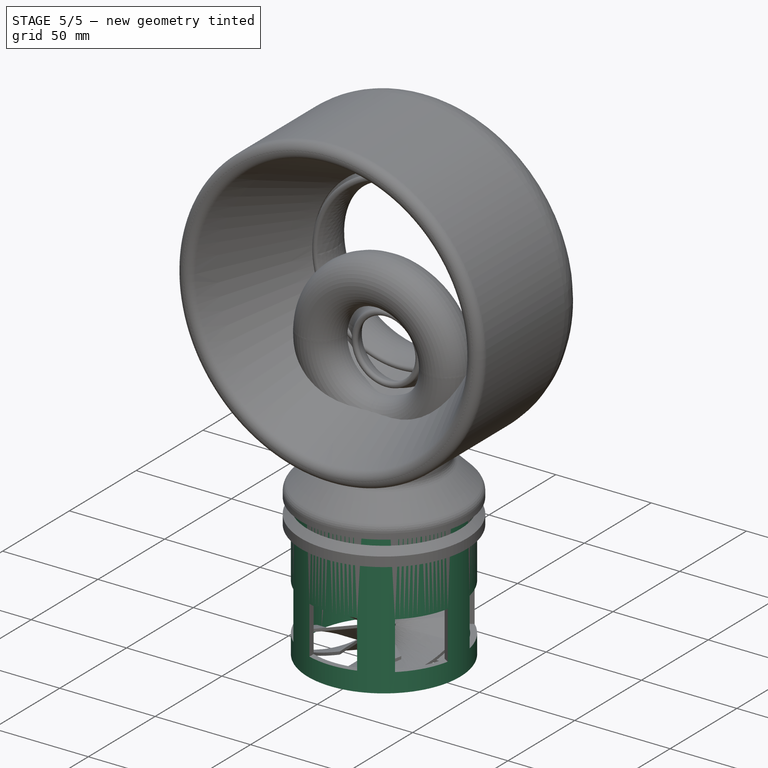
[diagram: stage 5 of 5 — iso view after this stage's code; geometry added in this stage tinted green]
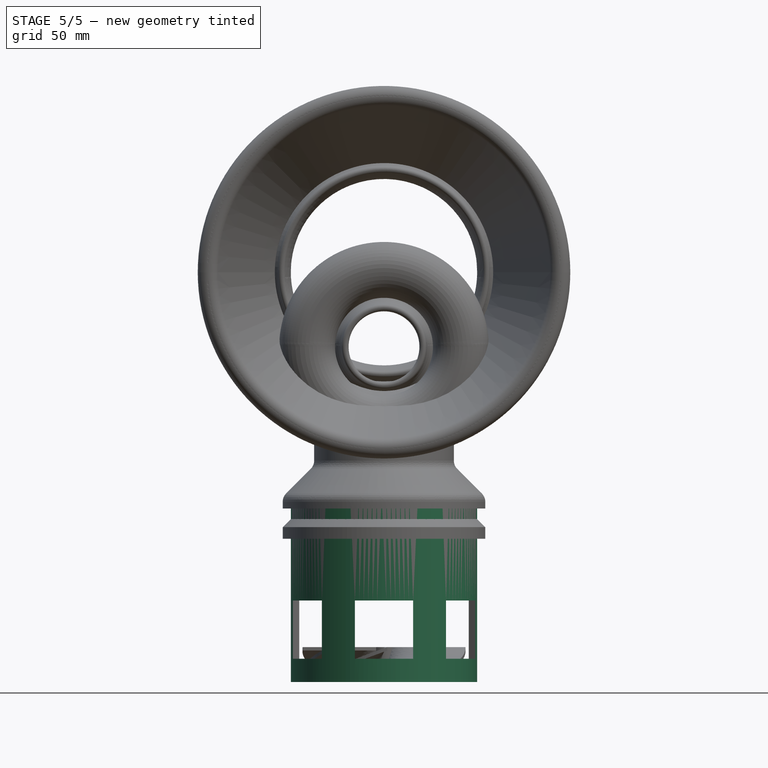
[diagram: stage 5 of 5 — front view after this stage's code; geometry added in this stage tinted green]
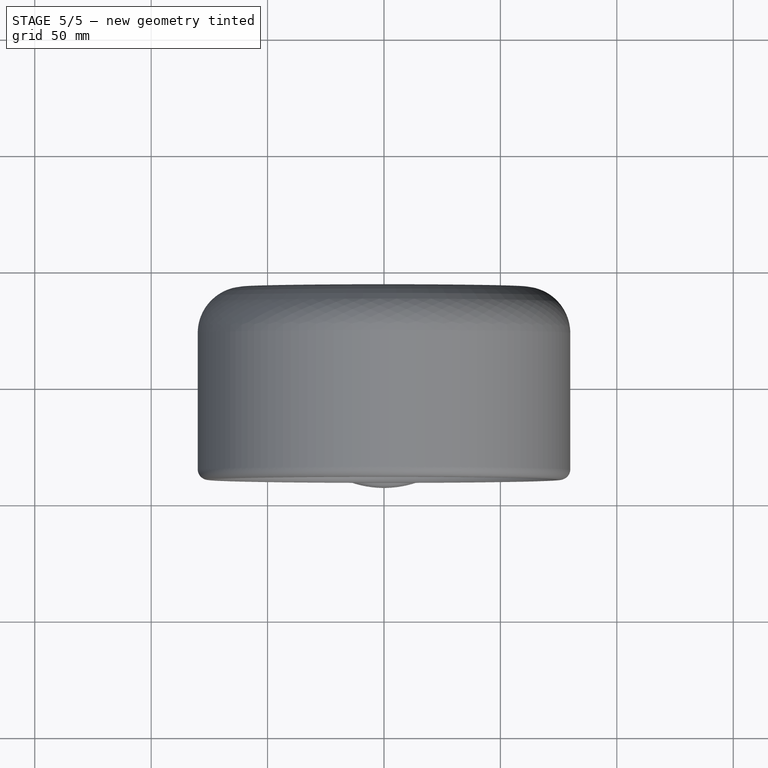
[diagram: stage 5 of 5 — top view after this stage's code; geometry added in this stage tinted green]
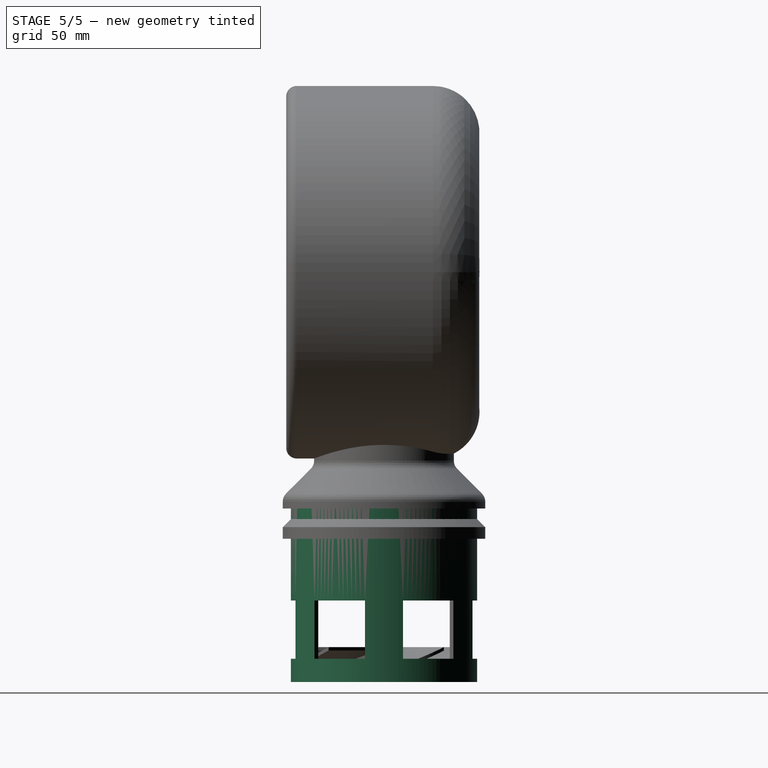
[diagram: stage 5 of 5 — right view after this stage's code; geometry added in this stage tinted green]
FEATURE [Sketcher::SketchObject] Sketch
  FullyConstrained = true
  MapMode = 5
  Placement = pos=(0,-45,3e-14) rot=(1,0,0;1.5708rad)
  Support = -> [Cut]
  sketch-geometry (2):
    g0: Circle CenterX=0 CenterY=0 CenterZ=0 NormalX=0 NormalY=0 NormalZ=1 AngleXU=0 Radius=37
    g1: Circle CenterX=0 CenterY=0 CenterZ=0 NormalX=0 NormalY=0 NormalZ=1 AngleXU=0 Radius=40
  constraints (4):
    c: Coincident(g0,g-1)
    c: Coincident(g1,g0)
    c: Radius(g0) = 37
    c: Radius(g1) = 40
FEATURE [PartDesign::Pad] Pad
  Direction = (1,1,1)
  Length = 80
  Length2 = 100
  Profile = -> Sketch
  Type = 0
FEATURE [Sketcher::SketchObject] Sketch001
  ExternalGeometry = -> [Pad]
  FullyConstrained = true
  MapMode = 5
  Placement = pos=(0,0,80) rot=(0,0,1;0rad)
  Support = -> [Pad]
  sketch-geometry (5):
    g0: LineSegment StartX=-5 StartY=36.6606 StartZ=0 EndX=-5 EndY=26.6606 EndZ=0
    g1: LineSegment StartX=-5 StartY=26.6606 StartZ=0 EndX=5 EndY=26.6606 EndZ=0
    g2: LineSegment StartX=5 StartY=26.6606 StartZ=0 EndX=5 EndY=36.6606 EndZ=0
    g3: ArcOfCircle CenterX=0 CenterY=0 CenterZ=0 NormalX=0 NormalY=0 NormalZ=1 AngleXU=0 Radius=37 StartAngle=1.43525 EndAngle=1.70635
    g4: Circle CenterX=0 CenterY=30 CenterZ=0 NormalX=0 NormalY=0 NormalZ=1 AngleXU=0 Radius=1.1
  constraints (15):
    c: PointOnObject(g0,g-3)
    c: Vertical(g0)
    c: Coincident(g1,g0)
    c: Horizontal(g1)
    c: Coincident(g2,g1)
    c: Vertical(g2)
    c: Coincident(g3,g-1)
    c: Coincident(g3,g0)
    c: Coincident(g3,g2)
    c: DistanceY(g0,g0) = 10
    c: Symmetric(g0,g2,g-2)
    c: DistanceX(g1,g1) = 10
    c: PointOnObject(g4,g-2)
    c: Distance(g4,g3) = 30
    c: Radius(g4) = 1.1
FEATURE [PartDesign::Pad] Pad001
  BaseFeature = -> Pad
  Direction = (1,1,1)
  Length = 2
  Length2 = 100
  Profile = -> Sketch001
  Reversed = true
  Type = 0
FEATURE [PartDesign::PolarPattern] PolarPattern
  Angle = 360
  Axis = -> Sketch001 [N_Axis]
  BaseFeature = -> Pad001
  Occurrences = 2
  Originals = -> [Pad001]
FEATURE [Sketcher::SketchObject] Sketch002
  AttachmentOffset = pos=(0,0,40) rot=(0,0,1;0rad)
  ExternalGeometry = -> [PolarPattern]
  FullyConstrained = true
  MapMode = 5
  Placement = pos=(0,0,40) rot=(0,0,1;0rad)
  Support = -> [XY_Plane]
  sketch-geometry (5):
    g0: LineSegment StartX=5 StartY=36.6606 StartZ=0 EndX=5 EndY=26.6606 EndZ=0
    g1: LineSegment StartX=5 StartY=26.6606 StartZ=0 EndX=-5 EndY=26.6606 EndZ=0
    g2: LineSegment StartX=-5 StartY=26.6606 StartZ=0 EndX=-5 EndY=36.6606 EndZ=0
    g3: ArcOfCircle CenterX=0 CenterY=0 CenterZ=0 NormalX=0 NormalY=0 NormalZ=1 AngleXU=0 Radius=37 StartAngle=1.43525 EndAngle=1.70635
    g4: Circle CenterX=0 CenterY=30 CenterZ=0 NormalX=0 NormalY=0 NormalZ=1 AngleXU=0 Radius=1.1
  constraints (13):
    c: Coincident(g0,g-6)
    c: Coincident(g0,g-3)
    c: Coincident(g1,g0)
    c: Coincident(g1,g-4)
    c: PointOnObject(g2,g1)
    c: PointOnObject(g2,g-4)
    c: Vertical(g2)
    c: Coincident(g3,g-1)
    c: Coincident(g3,g2)
    c: PointOnObject(g3,g0)
    c: Radius(g3) = 37
    c: Coincident(g4,g-5)
    c: Radius(g4) = 1.1
FEATURE [PartDesign::Pad] Pad002
  BaseFeature = -> PolarPattern
  Direction = (1,1,1)
  Length = 2
  Length2 = 100
  Profile = -> Sketch002
  Type = 0
FEATURE [PartDesign::PolarPattern] PolarPattern001
  Angle = 360
  Axis = -> Sketch002 [N_Axis]
  BaseFeature = -> Pad002
  Occurrences = 2
  Originals = -> [Pad002]
FEATURE [PartDesign::Fillet] Fillet
  Base = -> PolarPattern001 [Edge19,Edge18,Edge15,Edge24,Edge12,Edge22]
  BaseFeature = -> PolarPattern001
  Radius = 0.5
  SupportTransform = false
FEATURE [PartDesign::Boolean] Boolean
  BaseFeature = -> Fillet
  Group = -> [Body001]
  Type = 1
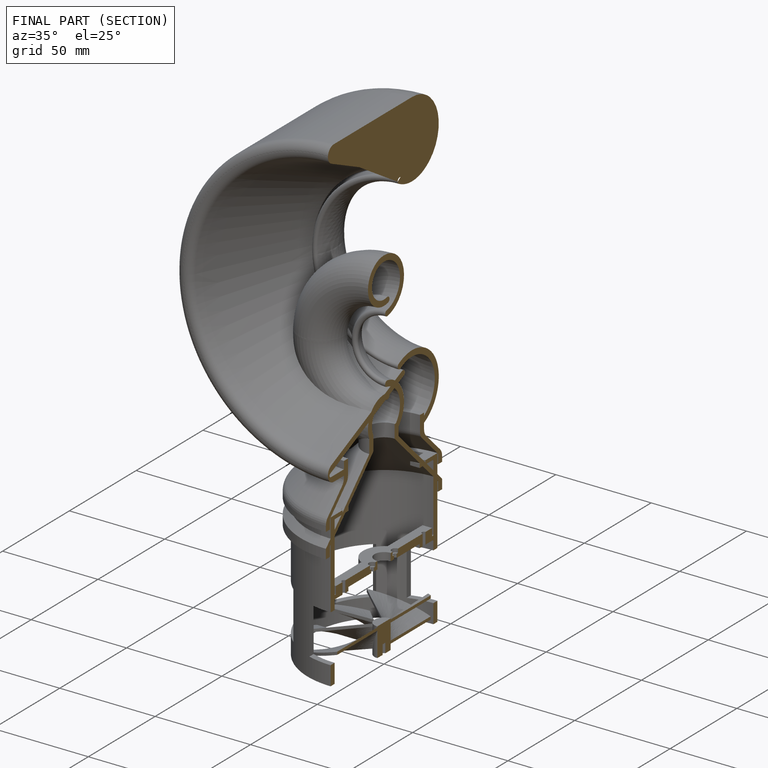
[diagram: finished part — half-section view (interior)]
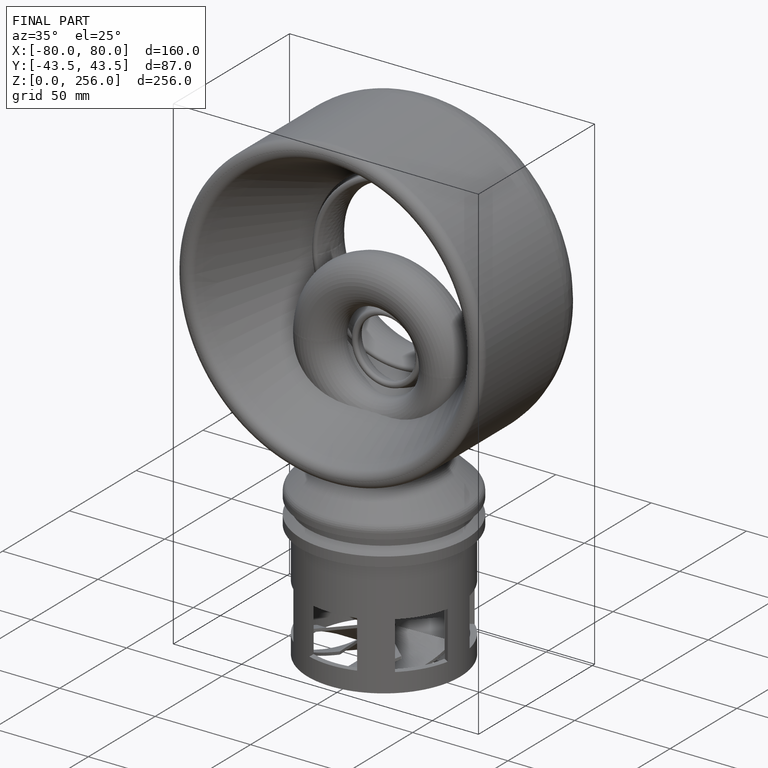
[diagram: finished part — iso view with bounding-box wireframe]
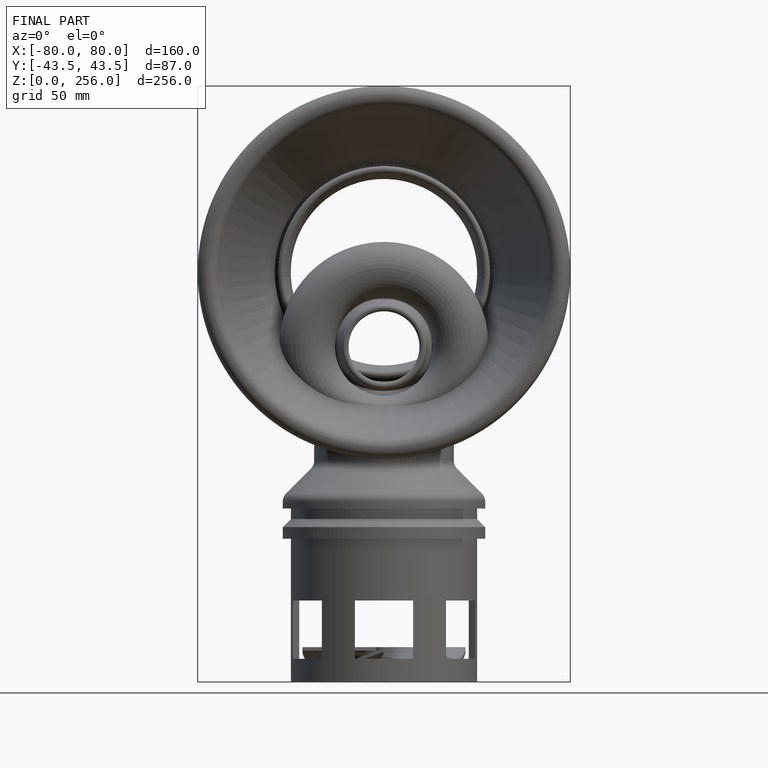
[diagram: finished part — front view with bounding-box wireframe]
